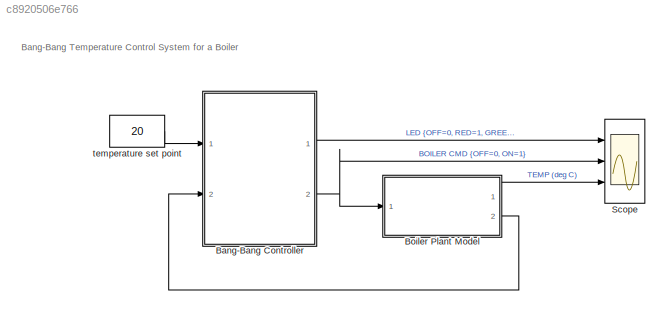
MODEL slx_c8920506e766
KIND model
CONFIG AbsTol = auto
CONFIG EnableMultiTasking = on
CONFIG FixedStep = auto
CONFIG MaxStep = auto
CONFIG MinStep = auto
CONFIG RelTol = 1e-3
CONFIG SampleTimeConstraint = Unconstrained
CONFIG SolverName = ode45
CONFIG StartTime = 0.0
CONFIG StopTime = 1400
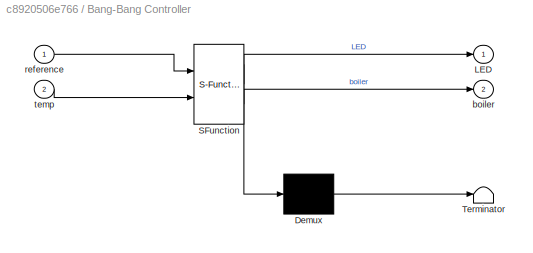
BLOCK [SubSystem] Bang-Bang Controller
  ErrorFcn = Stateflow.Translate.translate
  PermitHierarchicalResolution = ExplicitOnly
  Ports = [2, 2]
  RequestExecContextInheritance = off
  SFBlockType = Chart
  TreatAsAtomicUnit = on
BLOCK [Demux] Bang-Bang Controller/ Demux 
  Outputs = 1
  Ports = [1, 1]
BLOCK [S-Function] Bang-Bang Controller/ SFunction 
  EnableBusSupport = on
  FunctionName = sf_sfun
  PortCounts = [2 3]
  Ports = [2, 3]
  SFcnIsStateOwnerBlock = off
  SFunctionDeploymentMode = off
  Tag = Stateflow S-Function 7
BLOCK [Terminator] Bang-Bang Controller/ Terminator 
BLOCK [Outport] Bang-Bang Controller/ boiler
  Port = 2
  VectorParamsAs1DForOutWhenUnconnected = off
BLOCK [Outport] Bang-Bang Controller/LED
  VectorParamsAs1DForOutWhenUnconnected = off
BLOCK [Inport] Bang-Bang Controller/reference
BLOCK [Inport] Bang-Bang Controller/temp
  Port = 2
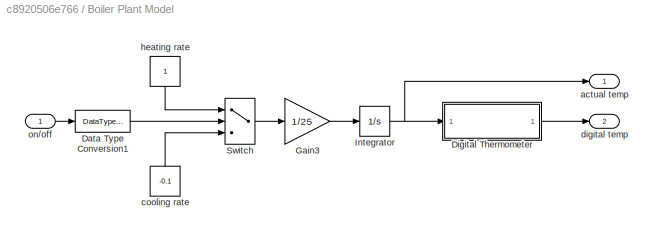
BLOCK [SubSystem] Boiler Plant Model
  Ports = [1, 2]
  RequestExecContextInheritance = off
BLOCK [DataTypeConversion] Boiler Plant Model/Data Type Conversion1
  OutDataTypeStr = boolean
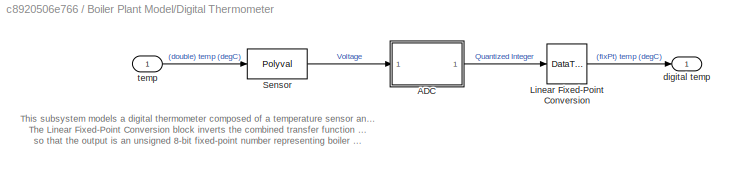
BLOCK [SubSystem] Boiler Plant Model/Digital Thermometer
  Ports = [1, 1]
  RequestExecContextInheritance = off
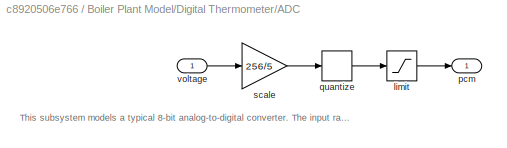
BLOCK [SubSystem] Boiler Plant Model/Digital Thermometer/ADC
  Ports = [1, 1]
  RequestExecContextInheritance = off
  ShowPortLabels = none
BLOCK [Saturate] Boiler Plant Model/Digital Thermometer/ADC/limit
  LowerLimit = 0
  UpperLimit = 255
BLOCK [Outport] Boiler Plant Model/Digital Thermometer/ADC/pcm
  VectorParamsAs1DForOutWhenUnconnected = off
BLOCK [Quantizer] Boiler Plant Model/Digital Thermometer/ADC/quantize
  QuantizationInterval = 1
BLOCK [Gain] Boiler Plant Model/Digital Thermometer/ADC/scale
  Gain = 256/5
  OutDataTypeStr = Inherit: Same as input
  ParamDataTypeStr = Inherit: Same as input
  SaturateOnIntegerOverflow = on
BLOCK [Inport] Boiler Plant Model/Digital Thermometer/ADC/voltage
BLOCK [DataTypeConversion] Boiler Plant Model/Digital Thermometer/Linear Fixed-Point Conversion
  ConvertRealWorld = Stored Integer (SI)
  OutDataTypeStr = fixdt(0,8,5/(256*0.05),-0.75/0.05)
  RndMeth = Floor
  SaturateOnIntegerOverflow = off
BLOCK [Polyval] Boiler Plant Model/Digital Thermometer/Sensor
  Coefs = [ 0.05     0.75 ]
BLOCK [Outport] Boiler Plant Model/Digital Thermometer/digital temp
  VectorParamsAs1DForOutWhenUnconnected = off
BLOCK [Inport] Boiler Plant Model/Digital Thermometer/temp
BLOCK [Gain] Boiler Plant Model/Gain3
  Gain = 1/25
  NameLocation = top
  OutDataTypeStr = Inherit: Same as input
  ParamDataTypeStr = Inherit: Same as input
  SaturateOnIntegerOverflow = on
BLOCK [Integrator] Boiler Plant Model/Integrator
  InitialCondition = 15
  Ports = [1, 1]
  ZeroCross = off
BLOCK [Switch] Boiler Plant Model/Switch
  Threshold = .5
BLOCK [Outport] Boiler Plant Model/actual temp
  VectorParamsAs1DForOutWhenUnconnected = off
BLOCK [Constant] Boiler Plant Model/cooling rate
  NameLocation = left
  Value = -0.1
BLOCK [Outport] Boiler Plant Model/digital temp
  Port = 2
  VectorParamsAs1DForOutWhenUnconnected = off
BLOCK [Constant] Boiler Plant Model/heating rate
  NameLocation = left
BLOCK [Inport] Boiler Plant Model/on//off
BLOCK [Scope] Scope
  Floating = off
  NumInputPorts = 3
  Ports = [3]
  ScopeSpecificationString = Simulink.scopes.TimeScopeBlockCfg('CurrentConfiguration', extmgr.ConfigurationSet(extmgr.Configuration('Core','General UI',true),extmgr.Configuration('Core','Source UI',true),extmgr.Configuration('Sources','WiredSimulink',true,'DataLoggingSaveFormat','StructureWithTime','DataLoggingLimitDataPoints',true,'DataLoggingDecimation','1'),extmgr.Configuration('Visuals','Time Domain',true,'SerializedDispl...<+3170ch>
BLOCK [Constant] temperature set point
  OutDataTypeStr = Inherit: Inherit via back propagation
  Value = 20
ANNOTATION (root): Bang-Bang Temperature Control System for a Boiler
ANNOTATION Boiler Plant Model/Digital Thermometer: This subsystem models a digital thermometer composed of a temperature sensor and an ADC. The Linear Fixed-Point Conversion block inverts the combined transfer function of the sensor and ADC so that the output is an unsigned 8-bit fixed-point number representing boiler temperature in degrees C.
ANNOTATION Boiler Plant Model/Digital Thermometer/ADC: This subsystem models a typical 8-bit analog-to-digital converter. The input range is 0-5 volts.The output range is 0-255.
LINE Bang-Bang Controller:1 -> Scope:1
NET Bang-Bang Controller:2 -> Boiler Plant Model:1, Scope:2
LINE Boiler Plant Model/Data Type Conversion1:1 -> Boiler Plant Model/Switch:2
LINE Boiler Plant Model/Digital Thermometer/ADC/limit:1 -> Boiler Plant Model/Digital Thermometer/ADC/pcm:1
LINE Boiler Plant Model/Digital Thermometer/ADC/quantize:1 -> Boiler Plant Model/Digital Thermometer/ADC/limit:1
LINE Boiler Plant Model/Digital Thermometer/ADC/scale:1 -> Boiler Plant Model/Digital Thermometer/ADC/quantize:1
LINE Boiler Plant Model/Digital Thermometer/ADC/voltage:1 -> Boiler Plant Model/Digital Thermometer/ADC/scale:1
LINE Boiler Plant Model/Digital Thermometer/ADC:1 -> Boiler Plant Model/Digital Thermometer/Linear Fixed-Point Conversion:1
LINE Boiler Plant Model/Digital Thermometer/Linear Fixed-Point Conversion:1 -> Boiler Plant Model/Digital Thermometer/digital temp:1
LINE Boiler Plant Model/Digital Thermometer/Sensor:1 -> Boiler Plant Model/Digital Thermometer/ADC:1
LINE Boiler Plant Model/Digital Thermometer/temp:1 -> Boiler Plant Model/Digital Thermometer/Sensor:1
LINE Boiler Plant Model/Digital Thermometer:1 -> Boiler Plant Model/digital temp:1
LINE Boiler Plant Model/Gain3:1 -> Boiler Plant Model/Integrator:1
NET Boiler Plant Model/Integrator:1 -> Boiler Plant Model/Digital Thermometer:1, Boiler Plant Model/actual temp:1
LINE Boiler Plant Model/Switch:1 -> Boiler Plant Model/Gain3:1
LINE Boiler Plant Model/cooling rate:1 -> Boiler Plant Model/Switch:3
LINE Boiler Plant Model/heating rate:1 -> Boiler Plant Model/Switch:1
LINE Boiler Plant Model/on//off:1 -> Boiler Plant Model/Data Type Conversion1:1
LINE Boiler Plant Model:1 -> Scope:3
LINE Boiler Plant Model:2 -> Bang-Bang Controller:2
LINE temperature set point:1 -> Bang-Bang Controller:1
note: NET lines group one-source signal fan-out (src -> all destinations, sorted); 1:1 wires keep LINE
CHART Bang-Bang
Controller states=9 transitions=20
  STATE_LABEL 'Heater'
  STATE_LABEL 'Off\nen: LED = RED;\n'
  STATE_LABEL 'Flash\nen: flash_LED()'
  STATE_LABEL 'after(5,sec)'
  STATE_LABEL 'On\nen,du: flash_LED()'
  STATE_LABEL 'HIGH'
  STATE_LABEL 'NORM'
  STATE_LABEL '[warm()]'
  STATE_LABEL '[warm()]'
  STATE_LABEL 'H'
  STATE_LABEL 'after(20,sec)'
  STATE_LABEL 'after(40,sec)[cold()]'
  STATE_LABEL '[warm()]'
  STATE_LABEL '[warm()]'
  STATE_LABEL 'Off\nen: LED = RED;\n'
  STATE_LABEL 'Flash\nen: flash_LED()'
  STATE_LABEL 'after(5,sec)'
  STATE_LABEL 'Flash\nen: flash_LED()'
  STATE_LABEL 'On\nen,du: flash_LED()'
  STATE_LABEL 'HIGH'
  STATE_LABEL 'NORM'
  STATE_LABEL '[warm()]'
  STATE_LABEL '[warm()]'
  STATE_LABEL 'H'
  STATE_LABEL 'HIGH'
  STATE_LABEL 'NORM'
  STATE_LABEL 'flash_LED'
  STATE_LABEL '[boiler == ON]'
  STATE_LABEL '{color=RED}'
  STATE_LABEL '{color=GREEN}'
  STATE_LABEL '[LED == color]'
  STATE_LABEL '{LED=color}'
  STATE_LABEL '{LED=OFF}'
  STATE_LABEL 'b = cold'
  STATE_LABEL '{ b = temp<=reference}'
  STATE_LABEL 'b = warm'
  STATE_LABEL '{b = ~cold()}'
CHART  states=0 transitions=0
